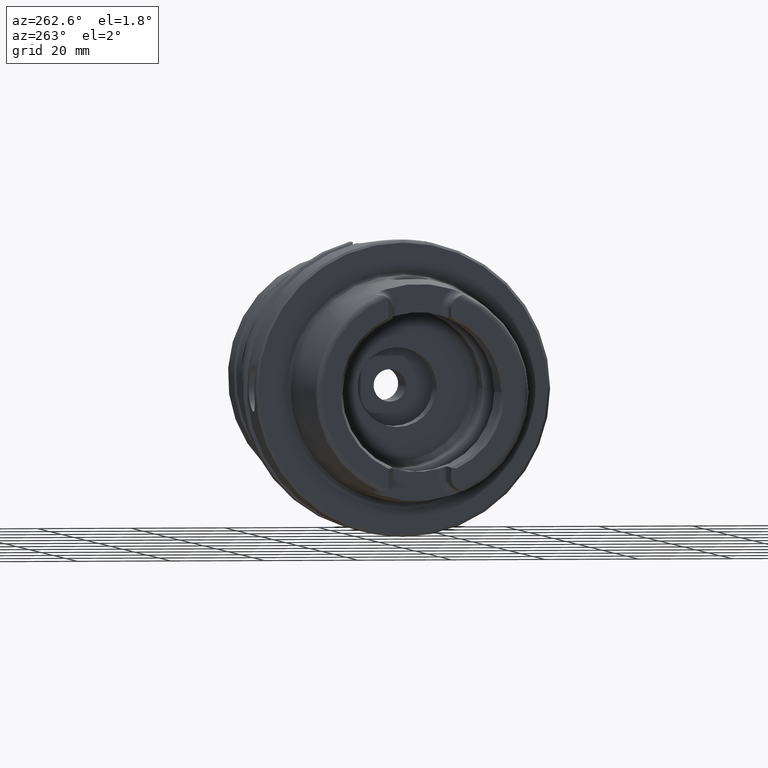
[diagram: clean part render]
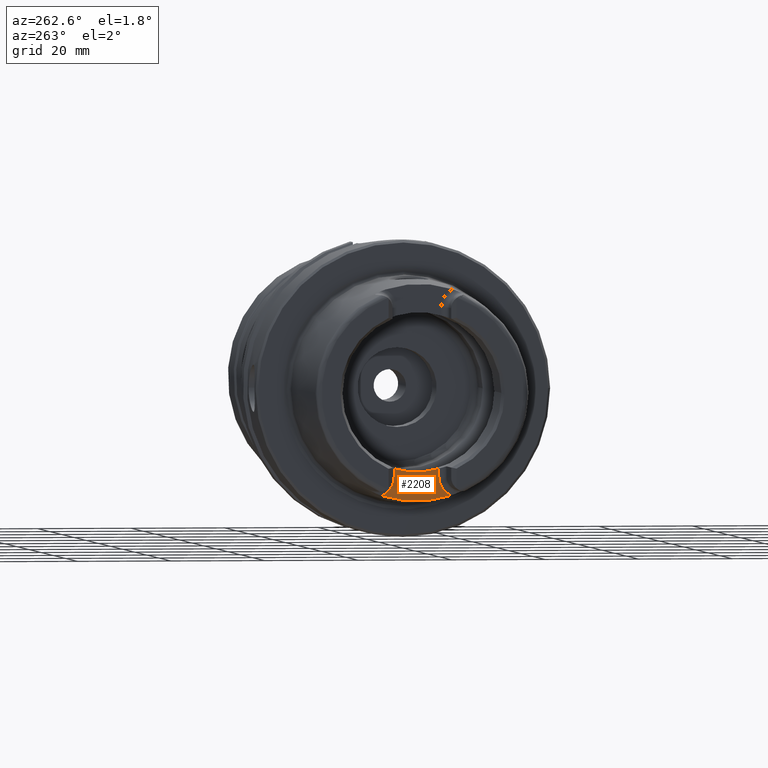
[diagram: same view with one face highlighted and labeled with its STEP entity id]
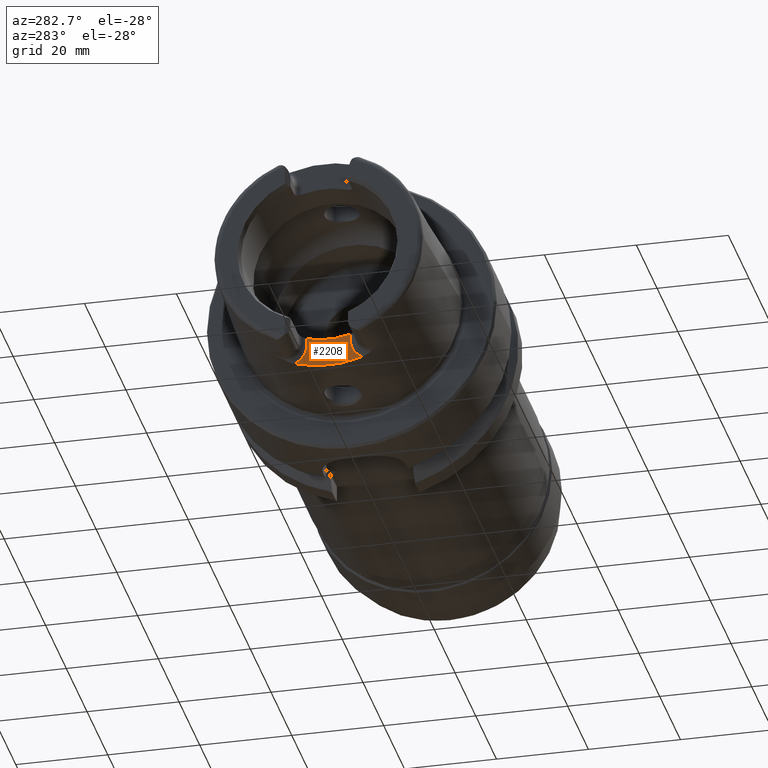
[diagram: same view with one face highlighted and labeled with its STEP entity id]
A machine part, auxiliary view. The second image highlights one B-rep face of the part: STEP entity #2208.
A second angle (auxiliary view) of the same face is appended — the face is thin or edge-on in the first view.
In plain terms, the highlighted planar face has unit normal (-1, 0, 0).
Its self-contained STEP definition (entity closure, byte-faithful):
#141=PLANE('',#2472);
#286=FACE_OUTER_BOUND('',#418,.T.);
#418=EDGE_LOOP('',(#1902,#1903,#1904,#1905,#1906,#1907));
#555=LINE('',#4612,#667);
#558=LINE('',#4624,#670);
#667=VECTOR('',#3044,10.);
#670=VECTOR('',#3059,10.);
#742=CIRCLE('',#2370,23.2184268537074);
#790=CIRCLE('',#2466,4.38);
#793=CIRCLE('',#2473,17.);
#794=CIRCLE('',#2474,4.38);
#921=VERTEX_POINT('',#3712);
#922=VERTEX_POINT('',#3723);
#1029=VERTEX_POINT('',#4596);
#1031=VERTEX_POINT('',#4601);
#1033=VERTEX_POINT('',#4621);
#1034=VERTEX_POINT('',#4623);
#1174=EDGE_CURVE('',#921,#922,#742,.T.);
#1336=EDGE_CURVE('',#1029,#921,#790,.T.);
#1338=EDGE_CURVE('',#1031,#1029,#555,.T.);
#1343=EDGE_CURVE('',#1033,#1031,#793,.T.);
#1344=EDGE_CURVE('',#1034,#1033,#558,.T.);
#1345=EDGE_CURVE('',#922,#1034,#794,.T.);
#1902=ORIENTED_EDGE('',*,*,#1336,.F.);
#1903=ORIENTED_EDGE('',*,*,#1338,.F.);
#1904=ORIENTED_EDGE('',*,*,#1343,.F.);
#1905=ORIENTED_EDGE('',*,*,#1344,.F.);
#1906=ORIENTED_EDGE('',*,*,#1345,.F.);
#1907=ORIENTED_EDGE('',*,*,#1174,.F.);
#2208=ADVANCED_FACE('',(#286),#141,.T.);
#2370=AXIS2_PLACEMENT_3D('',#3724,#2790,#2791);
#2466=AXIS2_PLACEMENT_3D('',#4598,#3040,#3041);
#2472=AXIS2_PLACEMENT_3D('',#4620,#3055,#3056);
#2473=AXIS2_PLACEMENT_3D('',#4622,#3057,#3058);
#2474=AXIS2_PLACEMENT_3D('',#4625,#3060,#3061);
#2790=DIRECTION('center_axis',(1.,0.,0.));
#2791=DIRECTION('ref_axis',(0.,1.,0.));
#3040=DIRECTION('center_axis',(-1.,0.,0.));
#3041=DIRECTION('ref_axis',(0.,0.522806483831831,-0.852451394780604));
#3044=DIRECTION('',(0.,0.,-1.));
#3055=DIRECTION('center_axis',(-1.,0.,0.));
#3056=DIRECTION('ref_axis',(0.,0.,1.));
#3057=DIRECTION('center_axis',(-1.,0.,0.));
#3058=DIRECTION('ref_axis',(0.,1.,0.));
#3059=DIRECTION('',(0.,0.,1.));
#3060=DIRECTION('center_axis',(-1.,0.,0.));
#3061=DIRECTION('ref_axis',(0.,-0.522806483831831,-0.852451394780604));
#3712=CARTESIAN_POINT('',(-22.,-7.4031250016059,-22.0065691504051));
#3723=CARTESIAN_POINT('',(-22.,7.4031250016059,-22.0065691504051));
#3724=CARTESIAN_POINT('Origin',(-22.,0.,0.));
#4596=CARTESIAN_POINT('',(-22.,-4.77,-17.99));
#4598=CARTESIAN_POINT('Origin',(-22.,-9.15,-17.99));
#4601=CARTESIAN_POINT('',(-22.,-4.77,-16.3170800083839));
#4612=CARTESIAN_POINT('',(-22.,-4.77,-17.8001077154309));
#4620=CARTESIAN_POINT('Origin',(-22.,0.,-17.6102154308617));
#4621=CARTESIAN_POINT('',(-22.,4.77,-16.3170800083839));
#4622=CARTESIAN_POINT('Origin',(-22.,0.,0.));
#4623=CARTESIAN_POINT('',(-22.,4.77,-17.99));
#4624=CARTESIAN_POINT('',(-22.,4.77,-14.3051077154309));
#4625=CARTESIAN_POINT('Origin',(-22.,9.15,-17.99));